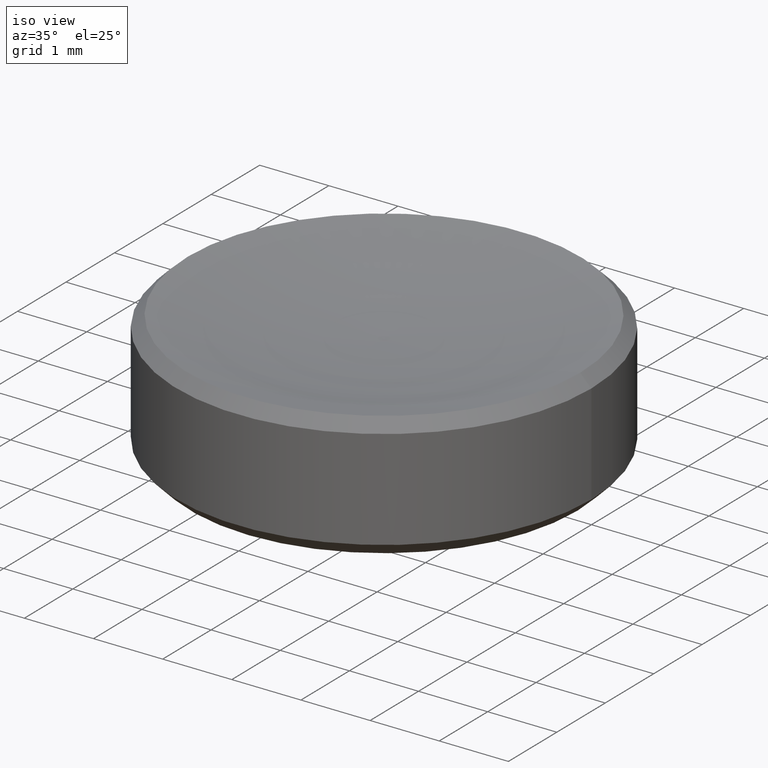
[diagram: clean part render]
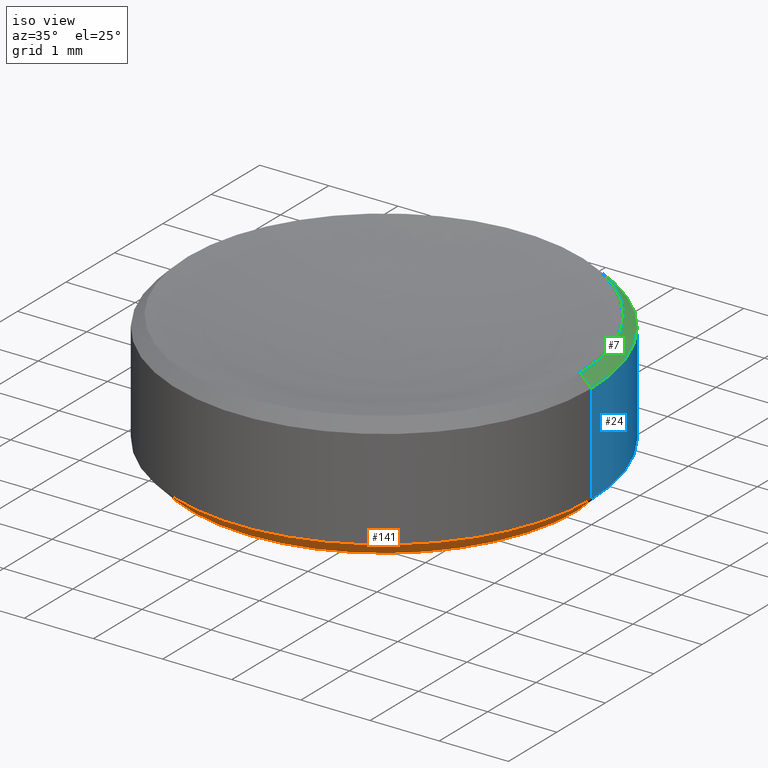
[diagram: same view with three faces highlighted in distinct colors, each labeled with its STEP entity id]
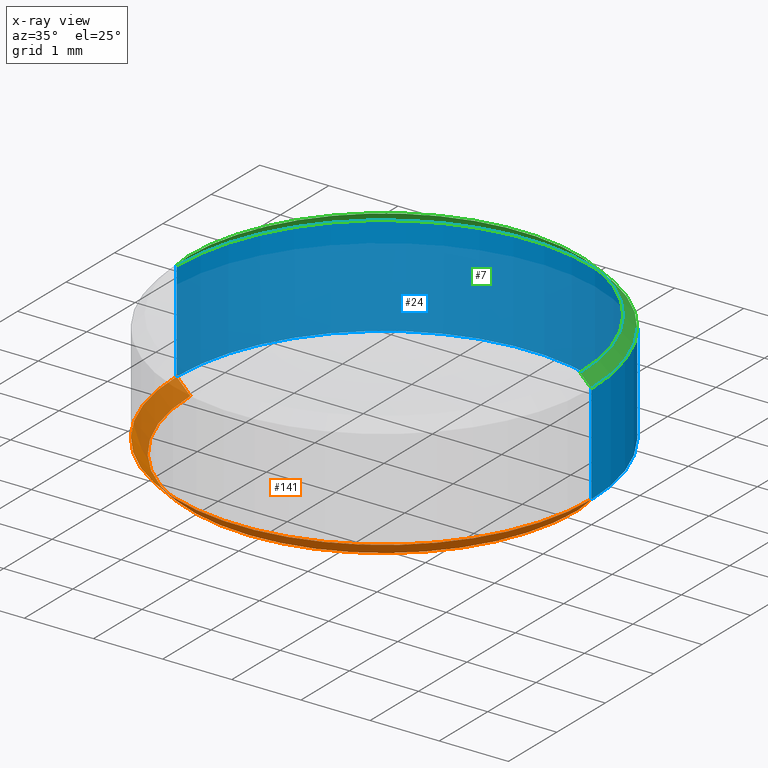
[diagram: x-ray of the same camera — body ghosted, the three highlighted faces saturated]
A machine part, iso view with three faces highlighted in distinct colors.
The next image is the same camera in x-ray (body ghosted, the three faces saturated) — at least one of them is partly hidden behind the body in this view.
Their STEP definitions:

[orange] entity #141 — the highlighted conical surface has half-angle 45 deg.
#4 = CIRCLE ( 'NONE', #10, 2.799999999999998046 ) ;
#8 = EDGE_CURVE ( 'NONE', #235, #187, #142, .T. ) ;
#10 = AXIS2_PLACEMENT_3D ( 'NONE', #240, #105, #49 ) ;
#12 = CARTESIAN_POINT ( 'NONE',  ( -3.000000000000000000, 3.673940397442059868E-16, 0.2000000000000011768 ) ) ;
#22 = CARTESIAN_POINT ( 'NONE',  ( 0.000000000000000000, 0.000000000000000000, 0.2000000000000011768 ) ) ;
#25 = ORIENTED_EDGE ( 'NONE', *, *, #243, .F. ) ;
#28 = LINE ( 'NONE', #257, #124 ) ;
#35 = AXIS2_PLACEMENT_3D ( 'NONE', #22, #104, #265 ) ;
#37 = ORIENTED_EDGE ( 'NONE', *, *, #133, .F. ) ;
#39 = AXIS2_PLACEMENT_3D ( 'NONE', #252, #134, #111 ) ;
#49 = DIRECTION ( 'NONE',  ( 1.000000000000000000, 0.000000000000000000, 0.000000000000000000 ) ) ;
#86 = CARTESIAN_POINT ( 'NONE',  ( -2.799999999999998046, 3.551475717527323339E-16, 1.836970198721029934E-16 ) ) ;
#90 = LINE ( 'NONE', #181, #130 ) ;
#104 = DIRECTION ( 'NONE',  ( -0.000000000000000000, -0.000000000000000000, 1.000000000000000000 ) ) ;
#105 = DIRECTION ( 'NONE',  ( 0.000000000000000000, 0.000000000000000000, -1.000000000000000000 ) ) ;
#111 = DIRECTION ( 'NONE',  ( 1.000000000000000000, 0.000000000000000000, 0.000000000000000000 ) ) ;
#124 = VECTOR ( 'NONE', #236, 1000.000000000000114 ) ;
#130 = VECTOR ( 'NONE', #161, 1000.000000000000114 ) ;
#133 = EDGE_CURVE ( 'NONE', #208, #144, #4, .T. ) ;
#134 = DIRECTION ( 'NONE',  ( -0.000000000000000000, -0.000000000000000000, 1.000000000000000000 ) ) ;
#141 = ADVANCED_FACE ( 'NONE', ( #179 ), #215, .T. ) ;
#142 = CIRCLE ( 'NONE', #35, 3.000000000000000000 ) ;
#144 = VERTEX_POINT ( 'NONE', #86 ) ;
#149 = ORIENTED_EDGE ( 'NONE', *, *, #8, .F. ) ;
#153 = CARTESIAN_POINT ( 'NONE',  ( 3.000000000000000000, 0.000000000000000000, 0.2000000000000011768 ) ) ;
#161 = DIRECTION ( 'NONE',  ( -0.7071067811865490160, 8.659560562354952580E-17, 0.7071067811865460184 ) ) ;
#177 = EDGE_LOOP ( 'NONE', ( #25, #37, #209, #149 ) ) ;
#179 = FACE_OUTER_BOUND ( 'NONE', #177, .T. ) ;
#181 = CARTESIAN_POINT ( 'NONE',  ( -3.000000000000000000, 3.673940397442059868E-16, 0.2000000000000011768 ) ) ;
#186 = CARTESIAN_POINT ( 'NONE',  ( 2.799999999999998046, 0.000000000000000000, 1.836970198721029934E-16 ) ) ;
#187 = VERTEX_POINT ( 'NONE', #153 ) ;
#191 = EDGE_CURVE ( 'NONE', #208, #187, #28, .T. ) ;
#208 = VERTEX_POINT ( 'NONE', #186 ) ;
#209 = ORIENTED_EDGE ( 'NONE', *, *, #191, .T. ) ;
#215 = CONICAL_SURFACE ( 'NONE', #39, 3.000000000000000000, 0.7853981633974504994 ) ;
#235 = VERTEX_POINT ( 'NONE', #12 ) ;
#236 = DIRECTION ( 'NONE',  ( 0.7071067811865490160, 0.000000000000000000, 0.7071067811865460184 ) ) ;
#240 = CARTESIAN_POINT ( 'NONE',  ( 0.000000000000000000, 0.000000000000000000, 1.836970198721029934E-16 ) ) ;
#243 = EDGE_CURVE ( 'NONE', #144, #235, #90, .T. ) ;
#252 = CARTESIAN_POINT ( 'NONE',  ( 0.000000000000000000, 0.000000000000000000, 0.2000000000000011768 ) ) ;
#257 = CARTESIAN_POINT ( 'NONE',  ( 3.000000000000000000, 0.000000000000000000, 0.2000000000000011768 ) ) ;
#265 = DIRECTION ( 'NONE',  ( 1.000000000000000000, 0.000000000000000000, 0.000000000000000000 ) ) ;

[blue] entity #24 — the highlighted cylindrical surface (partial cylindrical patch) has radius 3 mm, axis along (-0, -0, 1).
#12 = CARTESIAN_POINT ( 'NONE',  ( -3.000000000000000000, 3.673940397442059868E-16, 0.2000000000000011768 ) ) ;
#23 = CARTESIAN_POINT ( 'NONE',  ( 3.000000000000000000, 0.000000000000000000, 1.650000000000000355 ) ) ;
#24 = ADVANCED_FACE ( 'NONE', ( #195 ), #228, .T. ) ;
#26 = VECTOR ( 'NONE', #45, 1000.000000000000000 ) ;
#34 = CARTESIAN_POINT ( 'NONE',  ( 0.000000000000000000, 0.000000000000000000, 1.500000000000000000 ) ) ;
#45 = DIRECTION ( 'NONE',  ( -0.000000000000000000, -0.000000000000000000, 1.000000000000000000 ) ) ;
#46 = CIRCLE ( 'NONE', #204, 3.000000000000000000 ) ;
#52 = DIRECTION ( 'NONE',  ( -0.000000000000000000, -0.000000000000000000, 1.000000000000000000 ) ) ;
#53 = EDGE_CURVE ( 'NONE', #235, #210, #85, .T. ) ;
#59 = ORIENTED_EDGE ( 'NONE', *, *, #68, .F. ) ;
#68 = EDGE_CURVE ( 'NONE', #187, #107, #239, .T. ) ;
#72 = AXIS2_PLACEMENT_3D ( 'NONE', #34, #93, #261 ) ;
#82 = EDGE_CURVE ( 'NONE', #187, #235, #46, .T. ) ;
#85 = LINE ( 'NONE', #131, #26 ) ;
#93 = DIRECTION ( 'NONE',  ( -0.000000000000000000, -0.000000000000000000, 1.000000000000000000 ) ) ;
#101 = CIRCLE ( 'NONE', #197, 3.000000000000000000 ) ;
#107 = VERTEX_POINT ( 'NONE', #23 ) ;
#110 = CARTESIAN_POINT ( 'NONE',  ( 3.000000000000000000, 0.000000000000000000, 1.500000000000000000 ) ) ;
#123 = ORIENTED_EDGE ( 'NONE', *, *, #82, .T. ) ;
#125 = ORIENTED_EDGE ( 'NONE', *, *, #53, .T. ) ;
#131 = CARTESIAN_POINT ( 'NONE',  ( -3.000000000000000000, 3.673940397442059868E-16, 1.500000000000000000 ) ) ;
#136 = CARTESIAN_POINT ( 'NONE',  ( -3.000000000000000000, 3.673940397442059868E-16, 1.650000000000000355 ) ) ;
#153 = CARTESIAN_POINT ( 'NONE',  ( 3.000000000000000000, 0.000000000000000000, 0.2000000000000011768 ) ) ;
#166 = EDGE_CURVE ( 'NONE', #210, #107, #101, .T. ) ;
#168 = VECTOR ( 'NONE', #178, 1000.000000000000000 ) ;
#175 = DIRECTION ( 'NONE',  ( -1.000000000000000000, 0.000000000000000000, 0.000000000000000000 ) ) ;
#178 = DIRECTION ( 'NONE',  ( -0.000000000000000000, -0.000000000000000000, 1.000000000000000000 ) ) ;
#187 = VERTEX_POINT ( 'NONE', #153 ) ;
#195 = FACE_OUTER_BOUND ( 'NONE', #229, .T. ) ;
#197 = AXIS2_PLACEMENT_3D ( 'NONE', #198, #219, #175 ) ;
#198 = CARTESIAN_POINT ( 'NONE',  ( 0.000000000000000000, 0.000000000000000000, 1.650000000000000355 ) ) ;
#203 = DIRECTION ( 'NONE',  ( 1.000000000000000000, 0.000000000000000000, 0.000000000000000000 ) ) ;
#204 = AXIS2_PLACEMENT_3D ( 'NONE', #266, #52, #203 ) ;
#210 = VERTEX_POINT ( 'NONE', #136 ) ;
#219 = DIRECTION ( 'NONE',  ( 0.000000000000000000, 0.000000000000000000, -1.000000000000000000 ) ) ;
#228 = CYLINDRICAL_SURFACE ( 'NONE', #72, 3.000000000000000000 ) ;
#229 = EDGE_LOOP ( 'NONE', ( #123, #125, #253, #59 ) ) ;
#235 = VERTEX_POINT ( 'NONE', #12 ) ;
#239 = LINE ( 'NONE', #110, #168 ) ;
#253 = ORIENTED_EDGE ( 'NONE', *, *, #166, .T. ) ;
#261 = DIRECTION ( 'NONE',  ( 1.000000000000000000, 0.000000000000000000, 0.000000000000000000 ) ) ;
#266 = CARTESIAN_POINT ( 'NONE',  ( 0.000000000000000000, 0.000000000000000000, 0.2000000000000011768 ) ) ;

[green] entity #7 — the highlighted conical surface has half-angle 45 deg.
#6 = CARTESIAN_POINT ( 'NONE',  ( 2.837518045210084772, 0.000000000000000000, 1.812481954789914917 ) ) ;
#7 = ADVANCED_FACE ( 'NONE', ( #40 ), #227, .T. ) ;
#20 = VERTEX_POINT ( 'NONE', #147 ) ;
#23 = CARTESIAN_POINT ( 'NONE',  ( 3.000000000000000000, 0.000000000000000000, 1.650000000000000355 ) ) ;
#29 = CARTESIAN_POINT ( 'NONE',  ( -2.837518045210084772, 0.000000000000000000, 1.812481954789914917 ) ) ;
#40 = FACE_OUTER_BOUND ( 'NONE', #250, .T. ) ;
#42 = DIRECTION ( 'NONE',  ( 0.000000000000000000, 0.000000000000000000, -1.000000000000000000 ) ) ;
#44 = CARTESIAN_POINT ( 'NONE',  ( 0.000000000000000000, 0.000000000000000000, 1.812481954789914917 ) ) ;
#78 = VECTOR ( 'NONE', #196, 1000.000000000000114 ) ;
#84 = AXIS2_PLACEMENT_3D ( 'NONE', #202, #91, #258 ) ;
#91 = DIRECTION ( 'NONE',  ( -0.000000000000000000, -0.000000000000000000, 1.000000000000000000 ) ) ;
#101 = CIRCLE ( 'NONE', #197, 3.000000000000000000 ) ;
#107 = VERTEX_POINT ( 'NONE', #23 ) ;
#112 = EDGE_CURVE ( 'NONE', #20, #210, #217, .T. ) ;
#121 = ORIENTED_EDGE ( 'NONE', *, *, #146, .T. ) ;
#127 = ORIENTED_EDGE ( 'NONE', *, *, #166, .F. ) ;
#128 = CARTESIAN_POINT ( 'NONE',  ( 2.837518045210084772, 3.474957391589384965E-16, 1.812481954789914917 ) ) ;
#132 = DIRECTION ( 'NONE',  ( 0.7071067811865493491, 8.659560562354957510E-17, -0.7071067811865456854 ) ) ;
#136 = CARTESIAN_POINT ( 'NONE',  ( -3.000000000000000000, 3.673940397442059868E-16, 1.650000000000000355 ) ) ;
#140 = VECTOR ( 'NONE', #132, 1000.000000000000114 ) ;
#146 = EDGE_CURVE ( 'NONE', #164, #107, #237, .T. ) ;
#147 = CARTESIAN_POINT ( 'NONE',  ( -2.837518045210084772, 3.474957391589384965E-16, 1.812481954789914917 ) ) ;
#152 = ORIENTED_EDGE ( 'NONE', *, *, #112, .F. ) ;
#164 = VERTEX_POINT ( 'NONE', #6 ) ;
#166 = EDGE_CURVE ( 'NONE', #210, #107, #101, .T. ) ;
#175 = DIRECTION ( 'NONE',  ( -1.000000000000000000, 0.000000000000000000, 0.000000000000000000 ) ) ;
#180 = AXIS2_PLACEMENT_3D ( 'NONE', #44, #42, #190 ) ;
#190 = DIRECTION ( 'NONE',  ( -1.000000000000000000, 0.000000000000000000, 0.000000000000000000 ) ) ;
#192 = ORIENTED_EDGE ( 'NONE', *, *, #232, .F. ) ;
#196 = DIRECTION ( 'NONE',  ( -0.7071067811865493491, 0.000000000000000000, -0.7071067811865456854 ) ) ;
#197 = AXIS2_PLACEMENT_3D ( 'NONE', #198, #219, #175 ) ;
#198 = CARTESIAN_POINT ( 'NONE',  ( 0.000000000000000000, 0.000000000000000000, 1.650000000000000355 ) ) ;
#202 = CARTESIAN_POINT ( 'NONE',  ( 0.000000000000000000, 0.000000000000000000, 1.812481954789914917 ) ) ;
#207 = CIRCLE ( 'NONE', #84, 2.837518045210084772 ) ;
#210 = VERTEX_POINT ( 'NONE', #136 ) ;
#217 = LINE ( 'NONE', #29, #78 ) ;
#219 = DIRECTION ( 'NONE',  ( 0.000000000000000000, 0.000000000000000000, -1.000000000000000000 ) ) ;
#227 = CONICAL_SURFACE ( 'NONE', #180, 2.837518045210084772, 0.7853981633974509435 ) ;
#232 = EDGE_CURVE ( 'NONE', #164, #20, #207, .T. ) ;
#237 = LINE ( 'NONE', #128, #140 ) ;
#250 = EDGE_LOOP ( 'NONE', ( #192, #121, #127, #152 ) ) ;
#258 = DIRECTION ( 'NONE',  ( 1.000000000000000000, 0.000000000000000000, 0.000000000000000000 ) ) ;